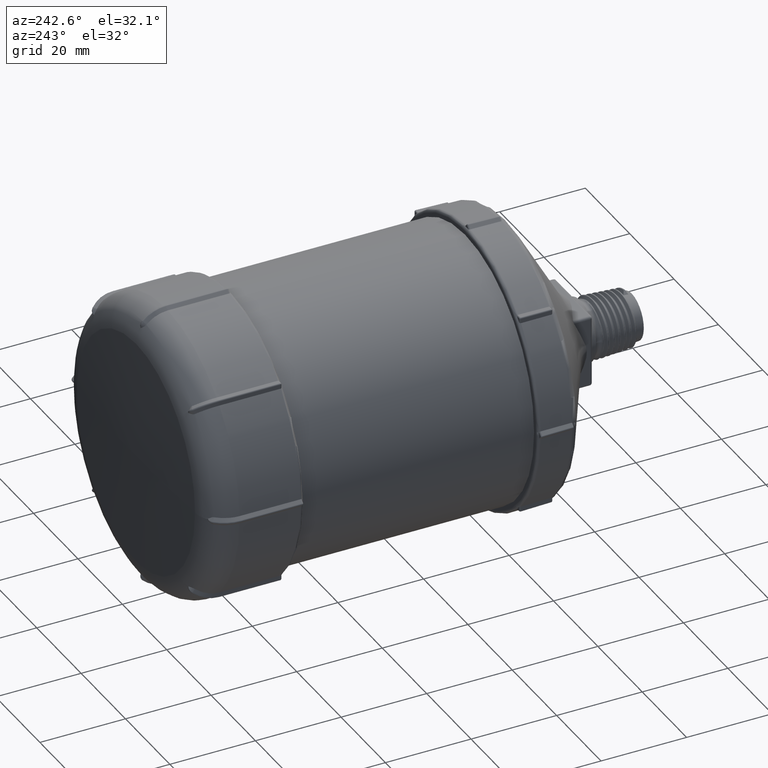
[diagram: clean part render]
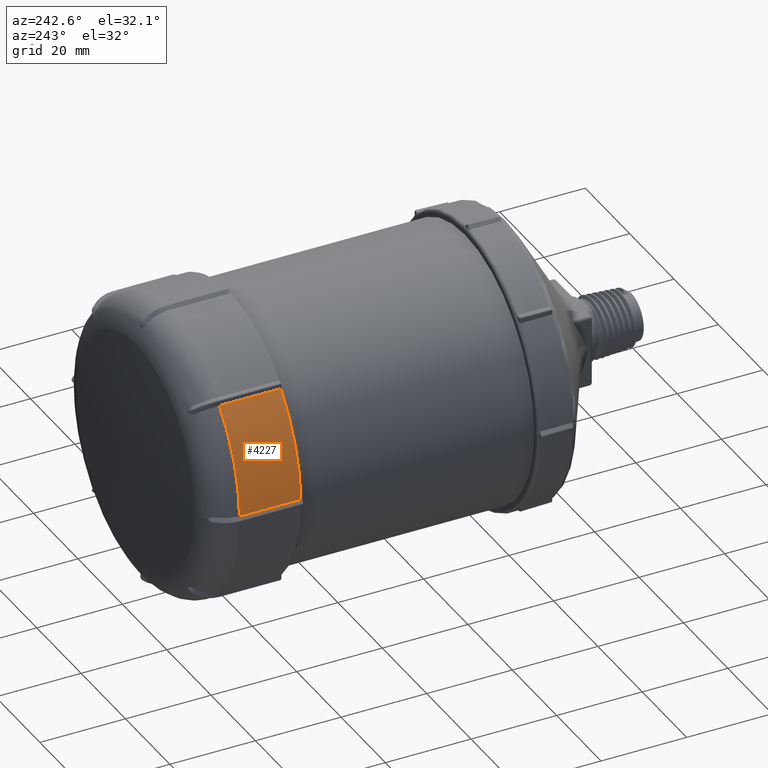
[diagram: same view with one face highlighted and labeled with its STEP entity id]
A machine part, auxiliary view. The second image highlights one B-rep face of the part: STEP entity #4227.
In plain terms, the highlighted cylindrical surface (partial cylindrical patch) has radius 33.25 mm, axis along (-0, 1, 0).
Its self-contained STEP definition (entity closure, byte-faithful):
#60=CYLINDRICAL_SURFACE('',#4534,33.25);
#240=CIRCLE('',#4511,33.25);
#260=CIRCLE('',#4535,33.25);
#498=FACE_OUTER_BOUND('',#760,.T.);
#760=EDGE_LOOP('',(#2703,#2704,#2705,#2706));
#1206=LINE('',#6718,#1409);
#1207=LINE('',#6721,#1410);
#1409=VECTOR('',#5061,10.);
#1410=VECTOR('',#5064,10.);
#1622=VERTEX_POINT('',#6365);
#1623=VERTEX_POINT('',#6386);
#1658=VERTEX_POINT('',#6717);
#1659=VERTEX_POINT('',#6719);
#2012=EDGE_CURVE('',#1622,#1623,#240,.T.);
#2052=EDGE_CURVE('',#1622,#1658,#1206,.T.);
#2053=EDGE_CURVE('',#1659,#1658,#260,.T.);
#2054=EDGE_CURVE('',#1659,#1623,#1207,.T.);
#2703=ORIENTED_EDGE('',*,*,#2012,.F.);
#2704=ORIENTED_EDGE('',*,*,#2052,.T.);
#2705=ORIENTED_EDGE('',*,*,#2053,.F.);
#2706=ORIENTED_EDGE('',*,*,#2054,.T.);
#4227=ADVANCED_FACE('',(#498),#60,.T.);
#4511=AXIS2_PLACEMENT_3D('',#6387,#5007,#5008);
#4534=AXIS2_PLACEMENT_3D('',#6716,#5059,#5060);
#4535=AXIS2_PLACEMENT_3D('',#6720,#5062,#5063);
#5007=DIRECTION('center_axis',(1.59033251244329E-15,-1.,-1.08596977349049E-16));
#5008=DIRECTION('ref_axis',(1.,1.59033251244329E-15,-6.12323399573757E-17));
#5059=DIRECTION('center_axis',(-1.59033251244329E-15,1.,1.08596977349049E-16));
#5060=DIRECTION('ref_axis',(0.707106781186548,1.20132456298996E-15,-0.707106781186547));
#5061=DIRECTION('',(-1.59033251244329E-15,1.,1.08596977349049E-16));
#5062=DIRECTION('center_axis',(-1.59033251244329E-15,1.,1.08596977349049E-16));
#5063=DIRECTION('ref_axis',(-0.707106781186548,-1.20132456298996E-15,0.707106781186547));
#5064=DIRECTION('',(1.59033251244329E-15,-1.,-1.08596977349049E-16));
#6365=CARTESIAN_POINT('',(-24.1294985259867,95.5501570853647,22.8764027085644));
#6386=CARTESIAN_POINT('',(-33.2381915187362,95.5501570853647,0.886072549975813));
#6387=CARTESIAN_POINT('Origin',(-1.29160772449767E-13,95.5501570853647,
-1.42648766176516E-14));
#6716=CARTESIAN_POINT('Origin',(-1.4872186235282E-13,107.850157085365,-1.29291337962583E-14));
#6717=CARTESIAN_POINT('',(-24.1294985259867,109.850157085365,22.8764027085681));
#6718=CARTESIAN_POINT('',(-24.1294985259867,107.850157085365,22.8764027085644));
#6719=CARTESIAN_POINT('',(-33.2381915187389,109.850157085365,0.886072549973187));
#6720=CARTESIAN_POINT('Origin',(-1.51902527377706E-13,109.850157085365,
-1.27119398415602E-14));
#6721=CARTESIAN_POINT('',(-33.2381915187362,107.850157085365,0.886072549975814));